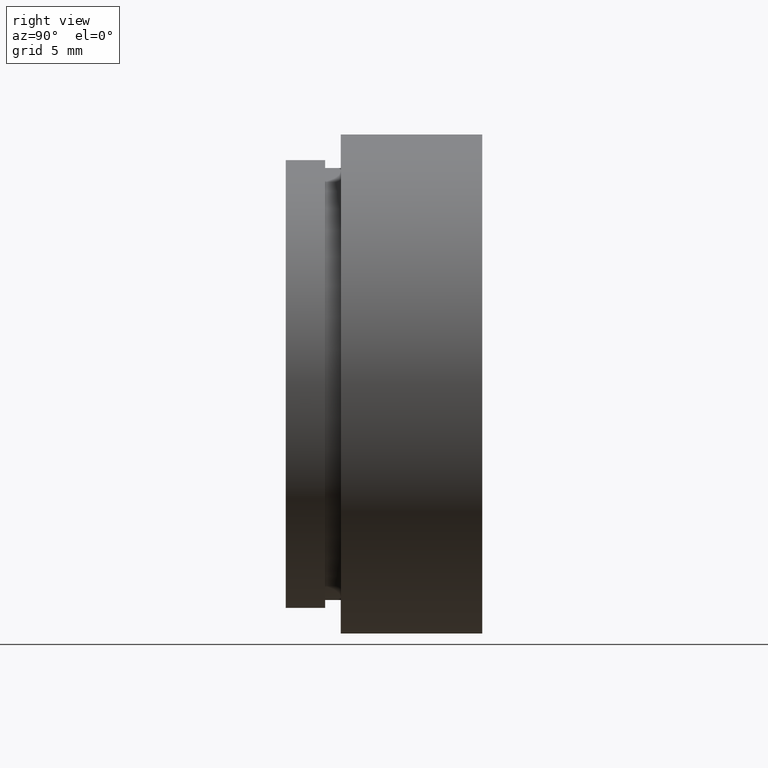
[diagram: clean part render]
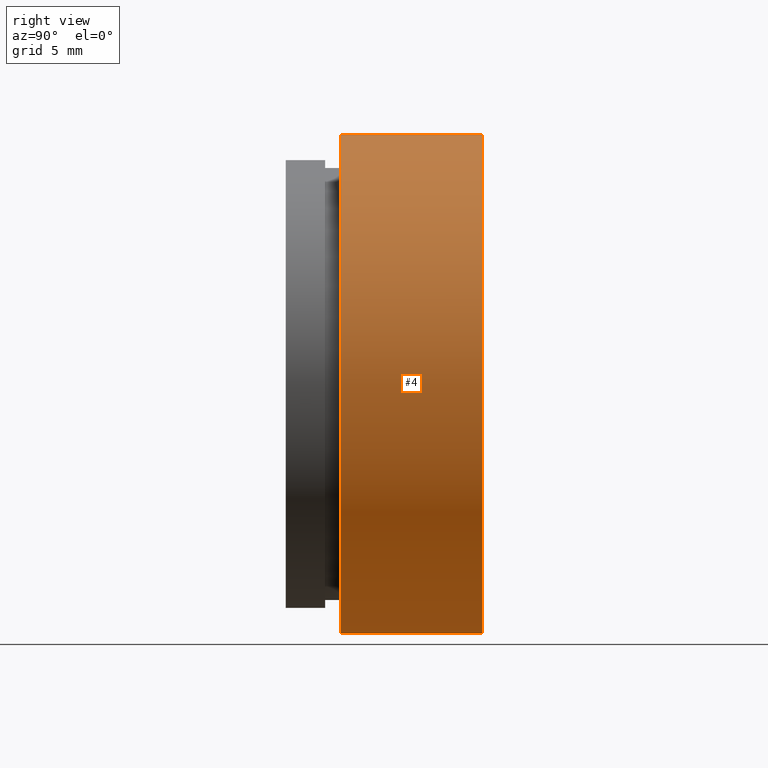
[diagram: same view with one face highlighted and labeled with its STEP entity id]
A machine part, right view. The second image highlights one B-rep face of the part: STEP entity #4.
In plain terms, the highlighted cylindrical surface (partial cylindrical patch) has radius 15.875 mm, axis along (-0, -1, -0).
Its self-contained STEP definition (entity closure, byte-faithful):
#4 = ADVANCED_FACE ( 'NONE', ( #665 ), #285, .T. ) ;
#56 = DIRECTION ( 'NONE',  ( 0.0000000000000000000, 0.0000000000000000000, -1.000000000000000000 ) ) ;
#66 = EDGE_CURVE ( 'NONE', #582, #708, #348, .T. ) ;
#72 = DIRECTION ( 'NONE',  ( -0.0000000000000000000, -1.000000000000000000, -0.0000000000000000000 ) ) ;
#74 = DIRECTION ( 'NONE',  ( 0.0000000000000000000, 0.0000000000000000000, -1.000000000000000000 ) ) ;
#145 = AXIS2_PLACEMENT_3D ( 'NONE', #524, #72, #74 ) ;
#175 = CARTESIAN_POINT ( 'NONE',  ( 0.0000000000000000000, 3.500000000000000000, -15.87500000000000000 ) ) ;
#242 = DIRECTION ( 'NONE',  ( 0.0000000000000000000, 0.0000000000000000000, -1.000000000000000000 ) ) ;
#270 = EDGE_LOOP ( 'NONE', ( #709, #424, #519, #378 ) ) ;
#285 = CYLINDRICAL_SURFACE ( 'NONE', #663, 15.87500000000000000 ) ;
#296 = CARTESIAN_POINT ( 'NONE',  ( 1.944126793646423200E-015, 0.0000000000000000000, 15.87500000000000000 ) ) ;
#307 = VECTOR ( 'NONE', #343, 1000.000000000000000 ) ;
#343 = DIRECTION ( 'NONE',  ( -0.0000000000000000000, -1.000000000000000000, -0.0000000000000000000 ) ) ;
#348 = CIRCLE ( 'NONE', #145, 15.87500000000000000 ) ;
#362 = AXIS2_PLACEMENT_3D ( 'NONE', #389, #496, #56 ) ;
#378 = ORIENTED_EDGE ( 'NONE', *, *, #452, .F. ) ;
#381 = EDGE_CURVE ( 'NONE', #436, #473, #625, .T. ) ;
#389 = CARTESIAN_POINT ( 'NONE',  ( 0.0000000000000000000, 3.500000000000000000, 0.0000000000000000000 ) ) ;
#424 = ORIENTED_EDGE ( 'NONE', *, *, #585, .T. ) ;
#436 = VERTEX_POINT ( 'NONE', #175 ) ;
#438 = LINE ( 'NONE', #627, #307 ) ;
#452 = EDGE_CURVE ( 'NONE', #582, #436, #438, .T. ) ;
#466 = DIRECTION ( 'NONE',  ( -0.0000000000000000000, -1.000000000000000000, -0.0000000000000000000 ) ) ;
#473 = VERTEX_POINT ( 'NONE', #574 ) ;
#496 = DIRECTION ( 'NONE',  ( -0.0000000000000000000, -1.000000000000000000, -0.0000000000000000000 ) ) ;
#518 = CARTESIAN_POINT ( 'NONE',  ( 1.944126793646423200E-015, 12.50000000000000000, 15.87500000000000000 ) ) ;
#519 = ORIENTED_EDGE ( 'NONE', *, *, #381, .F. ) ;
#521 = CARTESIAN_POINT ( 'NONE',  ( 0.0000000000000000000, 0.0000000000000000000, 0.0000000000000000000 ) ) ;
#524 = CARTESIAN_POINT ( 'NONE',  ( 0.0000000000000000000, 12.50000000000000000, 0.0000000000000000000 ) ) ;
#537 = LINE ( 'NONE', #296, #707 ) ;
#574 = CARTESIAN_POINT ( 'NONE',  ( 1.944126793646423200E-015, 3.500000000000000000, 15.87500000000000000 ) ) ;
#582 = VERTEX_POINT ( 'NONE', #586 ) ;
#585 = EDGE_CURVE ( 'NONE', #708, #473, #537, .T. ) ;
#586 = CARTESIAN_POINT ( 'NONE',  ( 0.0000000000000000000, 12.50000000000000000, -15.87500000000000000 ) ) ;
#587 = DIRECTION ( 'NONE',  ( -0.0000000000000000000, -1.000000000000000000, -0.0000000000000000000 ) ) ;
#625 = CIRCLE ( 'NONE', #362, 15.87500000000000000 ) ;
#627 = CARTESIAN_POINT ( 'NONE',  ( 0.0000000000000000000, 0.0000000000000000000, -15.87500000000000000 ) ) ;
#663 = AXIS2_PLACEMENT_3D ( 'NONE', #521, #587, #242 ) ;
#665 = FACE_OUTER_BOUND ( 'NONE', #270, .T. ) ;
#707 = VECTOR ( 'NONE', #466, 1000.000000000000000 ) ;
#708 = VERTEX_POINT ( 'NONE', #518 ) ;
#709 = ORIENTED_EDGE ( 'NONE', *, *, #66, .T. ) ;